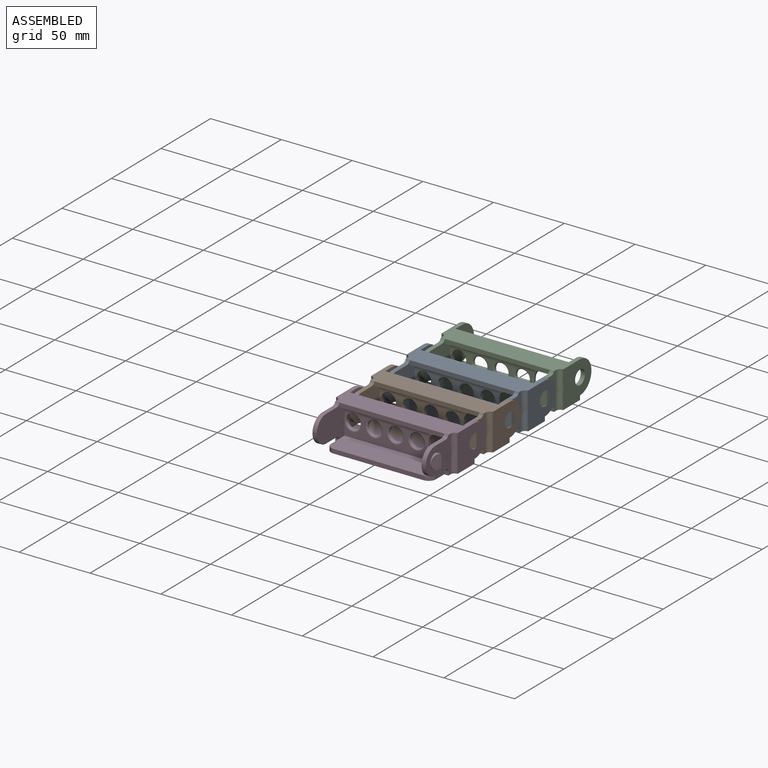
[diagram: assembled view]
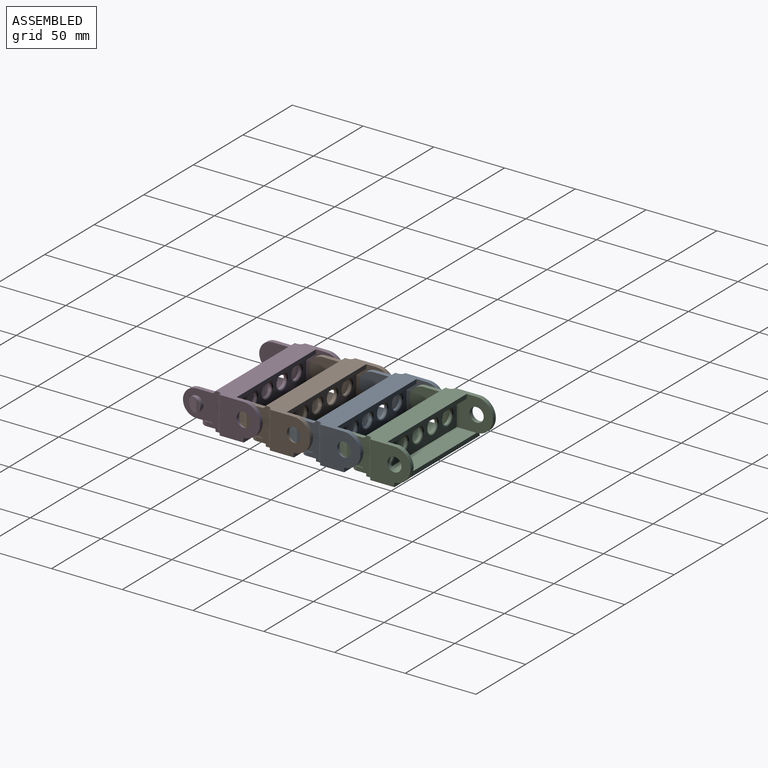
[diagram: assembled view, second angle]
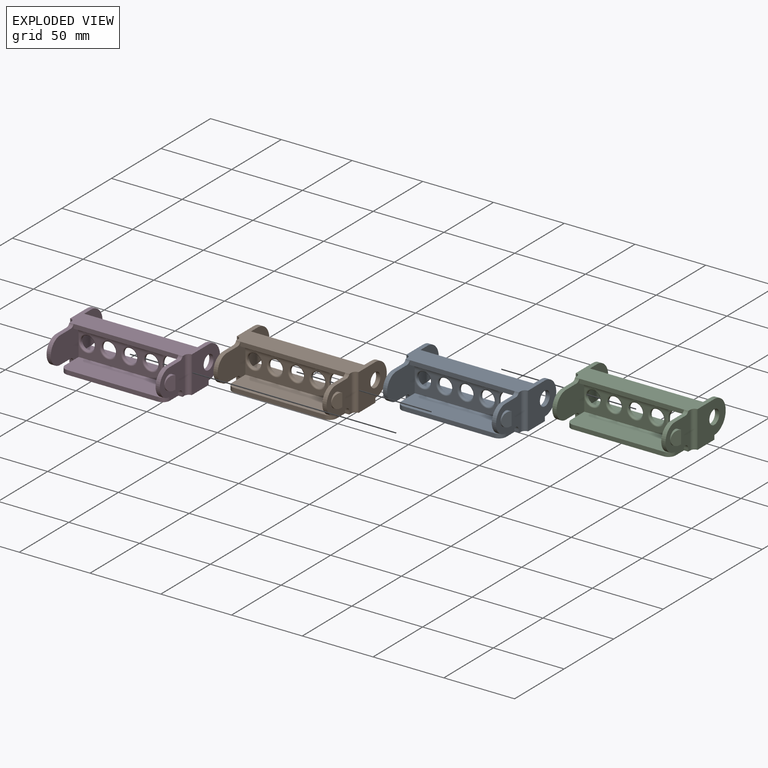
[diagram: exploded view]
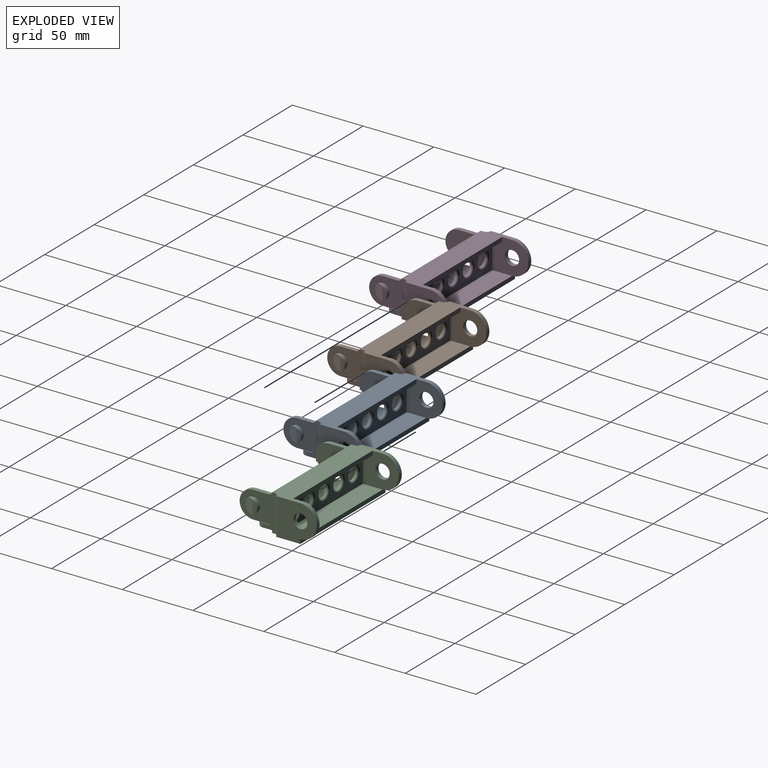
[diagram: exploded view, second angle]
ASSEMBLY  parts=4 mates=3
PART A: 100 faces, bbox 86x56.5x26 mm
  f0: plane 4x1.07mm, normal (0,-1,0), area 1.4mm2, adj f18,f53,f89
  f1: plane 74x15mm, normal (0,-1,0), area 476.5mm2, adj f17,f18,f20,f41,f42,f43,f44,f52
  f2: plane 6.63x0.08mm, normal (0,0,-1), area 0.3mm2, adj f60,f98
  f3: plane 6.63x0.08mm, normal (0,0,-1), area 0.3mm2, adj f60,f96
  f4: plane 6.63x0.08mm, normal (0,0,-1), area 0.3mm2, adj f60,f94
  f5: plane 6.63x0.08mm, normal (0,0,-1), area 0.3mm2, adj f60,f92
  f6: cylinder r=5mm len=10mm, axis (1,0,0), area 63.7mm2, adj f7,f16,f77
  f7: plane 9.17x3mm, normal (-1,0,0), area 19.8mm2, adj f6,f77
  f8: plane 3.03x2mm, normal (0,-1,0), area 6.1mm2, adj f9,f16,f21,f69
  f9: cylinder r=3mm len=3.03mm, axis (1,0,0), area 14.2mm2, adj f8,f16,f17,f20,f62,f69
  f10: plane 10.67x3mm, normal (0,0,1), area 32mm2, adj f12,f16,f17,f64
  f11: plane 10.67x3mm, normal (0,0,1), area 32mm2, adj f13,f15,f18,f65
  f12: cylinder r=9.5mm len=19mm, axis (-1,0,0), area 89.5mm2, adj f10,f16,f17,f62
  f13: cylinder r=9.5mm len=19mm, axis (-1,0,0), area 89.5mm2, adj f11,f15,f18,f61
  f14: plane 13.87x1.53mm, normal (0,0,-1), area 9.8mm2, adj f60,f90
  f15: plane 26x25mm, normal (1,0,0), area 375.2mm2, adj f11,f13,f21,f22,f61,f63,f65,f66
  f16: plane 26x25mm, normal (-1,0,0), area 375.2mm2, adj f6,f8,f9,f10,f12,f21,f22,f62
  f17: plane 28x23mm, normal (1,0,0), area 496.3mm2, adj f1,f9,f10,f12,f19,f20,f60,f62
  f18: plane 28x23mm, normal (-1,0,0), area 496.3mm2, adj f0,f1,f11,f13,f20,f51,f60,f61
  f19: plane 5x2.68mm, normal (0,-1,0), area 4mm2, adj f17,f44,f99
  f20: plane 74x18.5mm, normal (0,0,1), area 1358mm2, adj f1,f9,f17,f18,f66,f69,f70,f71
  f21: plane 86x35.5mm, normal (0,0,-1), area 2853.8mm2, adj f8,f15,f16,f23,f24,f55,f63,f67
  f22: plane 86x22mm, normal (0,0,1), area 1305.9mm2, adj f15,f16,f23,f24,f25,f27,f29,f56
  f23: plane 28.5x26mm, normal (-1,0,0), area 571.2mm2, adj f21,f22,f55,f56,f58,f68
  f24: plane 28.5x26mm, normal (1,0,0), area 571.2mm2, adj f21,f22,f25,f55,f57,f67
  f25: cylinder r=11.5mm len=23mm, axis (-1,0,0), area 108.4mm2, adj f22,f24,f29,f55
  f26: plane 80x14mm, normal (0,0,1), area 1120mm2, adj f27,f29,f36,f55
  f27: plane 25.5x23mm, normal (1,0,0), area 424.8mm2, adj f22,f26,f28,f36,f56,f58,f59,f88
  f28: plane 80x3.53mm, normal (0,0,-1), area 170.9mm2, adj f27,f29,f59,f78,f79,f80,f81,f82
  f29: plane 25.5x23mm, normal (-1,0,0), area 424.8mm2, adj f22,f25,f26,f28,f36,f57,f59,f78
  f30: plane 2x1mm, normal (1,0,0), area 2mm2, adj f45,f46,f47,f54
  f31: plane 2x1mm, normal (-1,0,0), area 2mm2, adj f45,f46,f50,f51
  f32: cylinder r=5mm len=10mm, axis (0,1,0), area 31.4mm2, adj f37,f41
  f33: cylinder r=5mm len=10mm, axis (0,1,0), area 31.4mm2, adj f38,f42
  f34: cylinder r=5mm len=10mm, axis (0,1,0), area 31.4mm2, adj f39,f43
  f35: cylinder r=5mm len=10mm, axis (0,1,0), area 31.4mm2, adj f40,f44
  f36: plane 80x15mm, normal (0,1,0), area 571.9mm2, adj f26,f27,f29,f37,f38,f39,f40,f47
  f37: torus R=6mm, axis (0,-1,0), area 52.9mm2, adj f32,f36,f81
  f38: torus R=6mm, axis (0,-1,0), area 52.9mm2, adj f33,f36,f83
  f39: torus R=6mm, axis (0,-1,0), area 52.9mm2, adj f34,f36,f85
  f40: torus R=6mm, axis (0,-1,0), area 52.9mm2, adj f35,f36,f87
  f41: torus R=6mm, axis (0,-1,0), area 52.9mm2, adj f1,f32,f92
  f42: torus R=6mm, axis (0,-1,0), area 52.9mm2, adj f1,f33,f94
  f43: torus R=6mm, axis (0,-1,0), area 52.9mm2, adj f1,f34,f96
  f44: torus R=6mm, axis (0,-1,0), area 52.9mm2, adj f1,f19,f35,f98
  f45: cylinder r=7mm len=14mm, axis (0,-1,0), area 22mm2, adj f30,f31,f48,f53
  f46: cylinder r=7mm len=14mm, axis (0,1,0), area 22mm2, adj f30,f31,f49,f52
  f47: cylinder r=1mm len=2mm, axis (0,0,1), area 3.1mm2, adj f30,f36,f48,f49
  f48: torus R=8mm, axis (0,-1,0), area 27.8mm2, adj f36,f45,f47,f50,f79
  f49: torus R=8mm, axis (0,-1,0), area 36.3mm2, adj f36,f46,f47,f50
  f50: cylinder r=1mm len=2mm, axis (0,0,-1), area 3.1mm2, adj f31,f36,f48,f49
  f51: cylinder r=1mm len=2mm, axis (0,0,1), area 3.1mm2, adj f18,f31,f52,f53
  f52: torus R=8mm, axis (0,-1,0), area 36.3mm2, adj f1,f46,f51,f54
  f53: torus R=8mm, axis (0,-1,0), area 27.8mm2, adj f0,f1,f45,f51,f54,f90
  f54: cylinder r=1mm len=2mm, axis (0,0,-1), area 3.1mm2, adj f1,f30,f52,f53
  f55: plane 86x3mm, normal (0,1,0), area 258mm2, adj f21,f23,f24,f25,f26,f56
  f56: cylinder r=11.5mm len=23mm, axis (-1,0,0), area 108.4mm2, adj f22,f23,f27,f55
  f57: cylinder r=5mm len=10mm, axis (-1,0,0), area 94.2mm2, adj f24,f29
  f58: cylinder r=5mm len=10mm, axis (-1,0,0), area 94.2mm2, adj f23,f27
  f59: plane 80x3mm, normal (0,1,0), area 240mm2, adj f22,f27,f28,f29
  f60: plane 74x3mm, normal (0,-1,0), area 222mm2, adj f2,f3,f4,f5,f14,f17,f18,f22
  f61: plane 10.5x3mm, normal (0,0,-1), area 31.5mm2, adj f13,f15,f18,f66
  f62: plane 10.5x3mm, normal (0,0,-1), area 31.5mm2, adj f9,f12,f16,f17
  f63: plane 3.02x2mm, normal (0,-1,0), area 6mm2, adj f15,f21,f66,f70
  f64: cylinder r=3mm len=3mm, axis (-1,0,0), area 11.1mm2, adj f10,f16,f17,f22
  f65: cylinder r=3mm len=3mm, axis (-1,0,0), area 11.1mm2, adj f11,f15,f18,f22
  f66: cylinder r=3mm len=3.02mm, axis (1,0,0), area 14.2mm2, adj f15,f18,f20,f61,f63,f70
  f67: cylinder r=3mm len=26mm, axis (0,0,1), area 122.5mm2, adj f15,f21,f22,f24
  f68: cylinder r=3mm len=26mm, axis (0,0,-1), area 122.5mm2, adj f16,f21,f22,f23
  f69: plane 8.5x3mm, normal (-1,0,0), area 25.5mm2, adj f8,f9,f20,f21,f73
  f70: plane 8.5x3mm, normal (1,0,0), area 25.5mm2, adj f20,f21,f63,f66,f72
  f71: plane 63.96x3mm, normal (0,-1,0), area 191.9mm2, adj f20,f21,f72,f73
  f72: cylinder r=5mm len=5mm, axis (0,0,-1), area 23.6mm2, adj f20,f21,f70,f71
  f73: cylinder r=5mm len=5mm, axis (0,0,1), area 23.6mm2, adj f20,f21,f69,f71
  f74: cylinder r=5mm len=10mm, axis (-1,0,0), area 63.7mm2, adj f15,f75,f76
  f75: plane 9.17x3mm, normal (1,0,0), area 19.8mm2, adj f74,f76
  f76: plane 10.02x7.02mm, normal (0.94,-0.34,0), area 62.4mm2, adj f74,f75
  f77: plane 10x7mm, normal (-0.94,-0.34,0), area 62.4mm2, adj f6,f7
  f78: cylinder r=5mm len=5mm, axis (-1,0,0), area 32mm2, adj f28,f29,f36,f79
  f79: bspline ~15.54x5.47mm, area 77.8mm2, adj f28,f48,f78,f80
  f80: cylinder r=5mm len=5mm, axis (-1,0,0), area 37.3mm2, adj f28,f36,f79,f81
  f81: bspline ~8.66x5.4mm, area 48.4mm2, adj f28,f37,f80,f82
  f82: cylinder r=5mm len=8.37mm, axis (-1,0,0), area 65.7mm2, adj f28,f36,f81,f83
  f83: bspline ~8.66x5.4mm, area 48.4mm2, adj f28,f38,f82,f84
  f84: cylinder r=5mm len=8.37mm, axis (-1,0,0), area 65.7mm2, adj f28,f36,f83,f85
  f85: bspline ~8.66x5.4mm, area 48.4mm2, adj f28,f39,f84,f86
  f86: cylinder r=5mm len=8.37mm, axis (-1,0,0), area 65.7mm2, adj f28,f36,f85,f87
  f87: bspline ~8.66x5.4mm, area 48.4mm2, adj f28,f40,f86,f88
  f88: cylinder r=5mm len=5.68mm, axis (-1,0,0), area 44.6mm2, adj f27,f28,f36,f87
  f89: cylinder r=5mm len=5mm, axis (1,0,0), area 8.4mm2, adj f0,f18,f60,f90
  f90: bspline ~15.54x5.47mm, area 77.8mm2, adj f14,f53,f89,f91
  f91: cylinder r=5mm len=5mm, axis (1,0,0), area 37.3mm2, adj f1,f60,f90,f92
  f92: bspline ~10.66x5.84mm, area 48.4mm2, adj f5,f41,f91,f93
  f93: cylinder r=5mm len=8.37mm, axis (1,0,0), area 65.7mm2, adj f1,f60,f92,f94
  f94: bspline ~10.66x5.84mm, area 48.4mm2, adj f4,f42,f93,f95
  f95: cylinder r=5mm len=8.37mm, axis (1,0,0), area 65.7mm2, adj f1,f60,f94,f96
  f96: bspline ~10.66x5.84mm, area 48.4mm2, adj f3,f43,f95,f97
  f97: cylinder r=5mm len=8.37mm, axis (1,0,0), area 65.7mm2, adj f1,f60,f96,f98
  f98: bspline ~10.66x5.84mm, area 48.4mm2, adj f2,f44,f97,f99
  f99: cylinder r=5mm len=5mm, axis (1,0,0), area 21.1mm2, adj f17,f19,f60,f98
PART B: same geometry as A
PART C: same geometry as A
PART D: same geometry as A
PLACE A rot(axis=(1,0,0),0deg) t=(-33.25,52.57,-26.78)mm
PLACE B rot(axis=(1,0,0),0deg) t=(-33.25,17.07,-26.78)mm
PLACE C rot(axis=(1,0,0),0deg) t=(-33.25,88.07,-26.78)mm
PLACE D t=(-33.25,-18.43,-26.78)mm fixed
MATE revolute A.f25 <-> C.f6  axis (-1,0,0) through (46.75,66.57,-15.28)mm
MATE revolute B.f25 <-> A.f6  axis (-1,0,0) through (46.75,31.07,-15.28)mm
MATE revolute D.f25 <-> B.f6  axis (-1,0,0) through (46.75,-4.43,-15.28)mm
